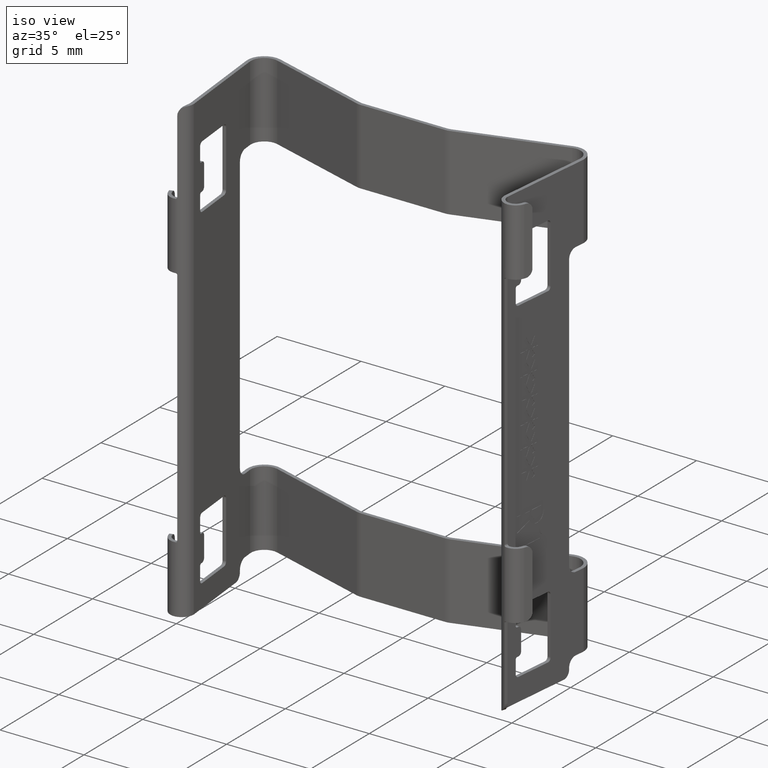
[diagram: clean part render]
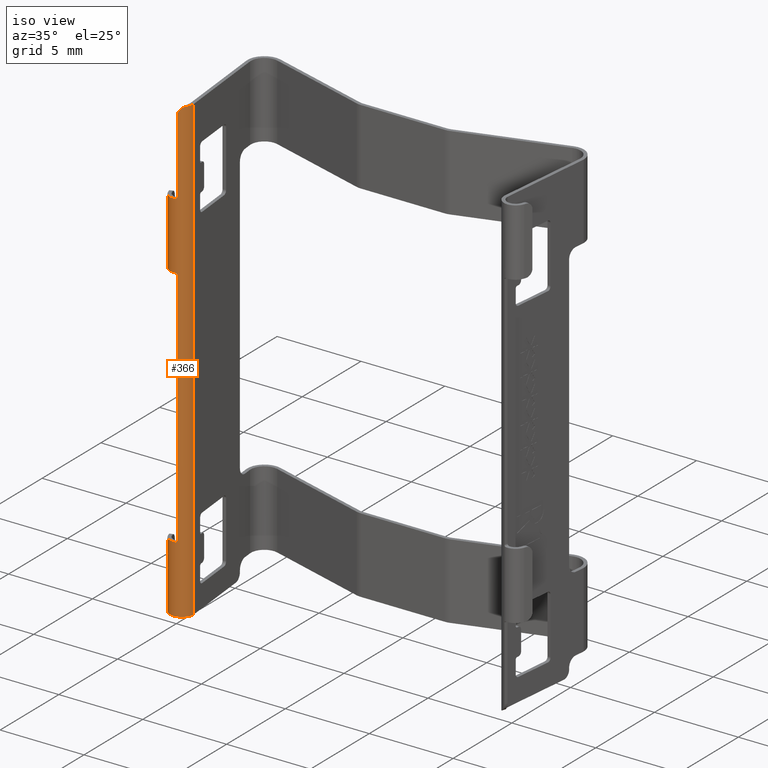
[diagram: same view with one face highlighted and labeled with its STEP entity id]
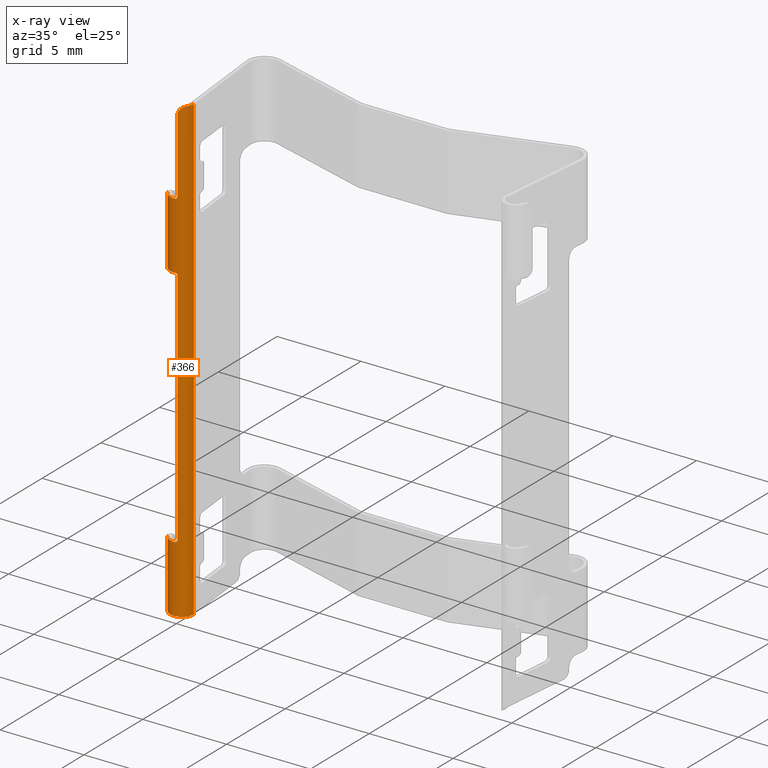
[diagram: x-ray of the same camera — body ghosted, the highlighted face saturated]
A machine part, iso view. The second image highlights one B-rep face of the part: STEP entity #366.
The next image is the same camera in x-ray: the body ghosted, the highlighted face saturated — about 0% of this face is hidden behind the body in this view.
In plain terms, the highlighted cylindrical surface (edge-blend (fillet) strip) has radius 0.7 mm, axis along (0, 0, 1).
Its self-contained STEP definition (entity closure, byte-faithful):
#59 = DIRECTION ( 'NONE',  ( 0.0000000000000000000, 0.0000000000000000000, 1.000000000000000000 ) ) ;
#97 = CIRCLE ( 'NONE', #9156, 0.6999999999999992895 ) ;
#215 = LINE ( 'NONE', #556, #7525 ) ;
#256 = AXIS2_PLACEMENT_3D ( 'NONE', #594, #8254, #7045 ) ;
#366 = ADVANCED_FACE ( 'NONE', ( #10797 ), #5990, .T. ) ;
#433 = CARTESIAN_POINT ( 'NONE',  ( -9.949999999496819569, -4.600000000627099794, -9.000000000000000000 ) ) ;
#479 = VECTOR ( 'NONE', #8460, 1000.000000000000000 ) ;
#556 = CARTESIAN_POINT ( 'NONE',  ( -9.249999999496820280, -4.600000000627099794, -27.50000000000000000 ) ) ;
#565 = B_SPLINE_CURVE_WITH_KNOTS ( 'NONE', 3,
 ( #8419, #10842, #4307, #8497, #6021, #4236, #2660, #5944, #9408, #4368, #7058, #8785, #10346, #3553 ),
 .UNSPECIFIED., .F., .F.,
 ( 4, 2, 2, 2, 2, 2, 4 ),
 ( 0.0000000000000000000, 0.1250000000000070499, 0.1875000000000087153, 0.2500000000000103806, 0.5000000000000069944, 0.7500000000000035527, 1.000000000000000000 ),
 .UNSPECIFIED. ) ;
#580 = CARTESIAN_POINT ( 'NONE',  ( -9.750000000000000000, -5.270820394027060374, -4.899999999999999467 ) ) ;
#594 = CARTESIAN_POINT ( 'NONE',  ( -9.949999999496819569, -4.600000000627099794, -27.50000000000000000 ) ) ;
#651 = B_SPLINE_CURVE_WITH_KNOTS ( 'NONE', 3,
 ( #3832, #1343, #6534, #3073 ),
 .UNSPECIFIED., .F., .F.,
 ( 4, 4 ),
 ( 0.0000000000000000000, 1.000000000000000000 ),
 .UNSPECIFIED. ) ;
#731 = ORIENTED_EDGE ( 'NONE', *, *, #8721, .F. ) ;
#966 = CARTESIAN_POINT ( 'NONE',  ( -9.750000000000000000, -5.270820394027060374, -9.099999999999999645 ) ) ;
#976 = CIRCLE ( 'NONE', #9041, 0.6999999999999992895 ) ;
#1140 = VERTEX_POINT ( 'NONE', #9555 ) ;
#1209 = VERTEX_POINT ( 'NONE', #6400 ) ;
#1221 = CARTESIAN_POINT ( 'NONE',  ( -9.847882821044100510, -5.292511431482119555, -9.000000000000000000 ) ) ;
#1343 = CARTESIAN_POINT ( 'NONE',  ( -9.750244229046906241, -5.270893209060319329, -23.45560730233806623 ) ) ;
#1475 = CARTESIAN_POINT ( 'NONE',  ( -9.750000000000000000, -5.270820394027060374, -9.000000000000000000 ) ) ;
#1514 = LINE ( 'NONE', #1475, #5874 ) ;
#1655 = ORIENTED_EDGE ( 'NONE', *, *, #9482, .F. ) ;
#1805 = CARTESIAN_POINT ( 'NONE',  ( -9.847882821044100510, -5.292511431482119555, -5.000000000000000000 ) ) ;
#1911 = ORIENTED_EDGE ( 'NONE', *, *, #3552, .T. ) ;
#2008 = AXIS2_PLACEMENT_3D ( 'NONE', #2289, #8316, #9108 ) ;
#2114 = DIRECTION ( 'NONE',  ( 1.000000000000000000, 0.0000000000000000000, 0.0000000000000000000 ) ) ;
#2133 = CIRCLE ( 'NONE', #256, 0.6999999999999992895 ) ;
#2289 = CARTESIAN_POINT ( 'NONE',  ( -9.949999999496819569, -4.600000000627099794, 0.0000000000000000000 ) ) ;
#2399 = ORIENTED_EDGE ( 'NONE', *, *, #4464, .T. ) ;
#2414 = VECTOR ( 'NONE', #5992, 1000.000000000000000 ) ;
#2643 = ORIENTED_EDGE ( 'NONE', *, *, #5603, .F. ) ;
#2649 = EDGE_LOOP ( 'NONE', ( #6469, #2399, #2643, #7103, #1911, #8205, #9664, #1655, #6324, #3178, #6241, #8067, #731, #6417 ) ) ;
#2660 = CARTESIAN_POINT ( 'NONE',  ( -9.440940136383446202, -5.080788808256524902, -0.02261233814100881145 ) ) ;
#2766 = CARTESIAN_POINT ( 'NONE',  ( -10.61229890969874035, -4.826627786975890899, -9.000000000000000000 ) ) ;
#2892 = AXIS2_PLACEMENT_3D ( 'NONE', #9129, #3985, #3954 ) ;
#3006 = CARTESIAN_POINT ( 'NONE',  ( -9.949999999496819569, -4.600000000627099794, -5.000000000000000000 ) ) ;
#3073 = CARTESIAN_POINT ( 'NONE',  ( -9.847882821044100510, -5.292511431482119555, -23.50000000000000000 ) ) ;
#3178 = ORIENTED_EDGE ( 'NONE', *, *, #10055, .T. ) ;
#3245 = AXIS2_PLACEMENT_3D ( 'NONE', #4255, #59, #10228 ) ;
#3552 = EDGE_CURVE ( 'NONE', #9564, #5418, #9351, .T. ) ;
#3553 = CARTESIAN_POINT ( 'NONE',  ( -9.750000000000000000, -5.270820394027060374, -0.5000000000000000000 ) ) ;
#3564 = LINE ( 'NONE', #9235, #3830 ) ;
#3728 = DIRECTION ( 'NONE',  ( 0.0000000000000000000, 0.0000000000000000000, 1.000000000000000000 ) ) ;
#3797 = DIRECTION ( 'NONE',  ( 0.0000000000000000000, 0.0000000000000000000, 1.000000000000000000 ) ) ;
#3830 = VECTOR ( 'NONE', #6608, 1000.000000000000000 ) ;
#3832 = CARTESIAN_POINT ( 'NONE',  ( -9.750000000000000000, -5.270820394027060374, -23.40000000000000213 ) ) ;
#3954 = DIRECTION ( 'NONE',  ( 1.000000000000000000, 0.0000000000000000000, 0.0000000000000000000 ) ) ;
#3985 = DIRECTION ( 'NONE',  ( 0.0000000000000000000, 0.0000000000000000000, 1.000000000000000000 ) ) ;
#4100 = CARTESIAN_POINT ( 'NONE',  ( -9.847882821044100510, -5.292511431482119555, -5.000000000000000000 ) ) ;
#4174 = CARTESIAN_POINT ( 'NONE',  ( -9.249999999496809622, -4.600000000627099794, -27.50000000000000000 ) ) ;
#4236 = CARTESIAN_POINT ( 'NONE',  ( -9.431716829154041193, -5.070793041880293117, -0.01919140500811905917 ) ) ;
#4255 = CARTESIAN_POINT ( 'NONE',  ( -9.949999999496819569, -4.600000000627099794, -27.50000000000000000 ) ) ;
#4307 = CARTESIAN_POINT ( 'NONE',  ( -9.368850778025826997, -4.991738710920675004, -0.002326230910075036476 ) ) ;
#4312 = EDGE_CURVE ( 'NONE', #8076, #9281, #97, .T. ) ;
#4368 = CARTESIAN_POINT ( 'NONE',  ( -9.642720156384651631, -5.231199364946858665, -0.1745130632790648506 ) ) ;
#4464 = EDGE_CURVE ( 'NONE', #7799, #11005, #215, .T. ) ;
#4545 = VERTEX_POINT ( 'NONE', #8349 ) ;
#4878 = CARTESIAN_POINT ( 'NONE',  ( -9.750000000000000000, -5.270820394027060374, -4.899999999999999467 ) ) ;
#5258 = CARTESIAN_POINT ( 'NONE',  ( -9.249999999496809622, -4.600000000627099794, 0.0000000000000000000 ) ) ;
#5418 = VERTEX_POINT ( 'NONE', #4878 ) ;
#5531 = DIRECTION ( 'NONE',  ( 0.0000000000000000000, 0.0000000000000000000, -1.000000000000000000 ) ) ;
#5565 = CARTESIAN_POINT ( 'NONE',  ( -9.847882821044100510, -5.292511431482119555, -9.000000000000000000 ) ) ;
#5603 = EDGE_CURVE ( 'NONE', #1209, #11005, #8461, .T. ) ;
#5648 = CARTESIAN_POINT ( 'NONE',  ( -9.792981938536318154, -5.284415791516519967, -9.000000000000001776 ) ) ;
#5696 = CARTESIAN_POINT ( 'NONE',  ( -9.792969082319050500, -5.284413895749064949, -5.000000000000000888 ) ) ;
#5874 = VECTOR ( 'NONE', #5531, 1000.000000000000000 ) ;
#5944 = CARTESIAN_POINT ( 'NONE',  ( -9.501924759183161484, -5.142241392825763313, -0.04912450204046701907 ) ) ;
#5990 = CYLINDRICAL_SURFACE ( 'NONE', #3245, 0.6999999999999992895 ) ;
#5992 = DIRECTION ( 'NONE',  ( 0.0000000000000000000, 0.0000000000000000000, -1.000000000000000000 ) ) ;
#6021 = CARTESIAN_POINT ( 'NONE',  ( -9.410449459090299840, -5.046260851139469317, -0.01221271227789394627 ) ) ;
#6064 = CARTESIAN_POINT ( 'NONE',  ( -9.750000000000000000, -5.270820394027060374, -23.40000000000000213 ) ) ;
#6241 = ORIENTED_EDGE ( 'NONE', *, *, #6625, .T. ) ;
#6324 = ORIENTED_EDGE ( 'NONE', *, *, #4312, .T. ) ;
#6400 = CARTESIAN_POINT ( 'NONE',  ( -9.330871733547111191, -4.926619336095949819, 0.0000000000000000000 ) ) ;
#6417 = ORIENTED_EDGE ( 'NONE', *, *, #10773, .F. ) ;
#6469 = ORIENTED_EDGE ( 'NONE', *, *, #9205, .T. ) ;
#6481 = VERTEX_POINT ( 'NONE', #8544 ) ;
#6489 = VERTEX_POINT ( 'NONE', #966 ) ;
#6534 = CARTESIAN_POINT ( 'NONE',  ( -9.792969082319041618, -5.284413895749063173, -23.50000000000000000 ) ) ;
#6608 = DIRECTION ( 'NONE',  ( 0.0000000000000000000, 0.0000000000000000000, 1.000000000000000000 ) ) ;
#6625 = EDGE_CURVE ( 'NONE', #6489, #6908, #1514, .T. ) ;
#6908 = VERTEX_POINT ( 'NONE', #6064 ) ;
#7045 = DIRECTION ( 'NONE',  ( 1.000000000000000000, 0.0000000000000000000, 0.0000000000000000000 ) ) ;
#7058 = CARTESIAN_POINT ( 'NONE',  ( -9.681647317211504955, -5.247157183122737933, -0.2317352195909671841 ) ) ;
#7103 = ORIENTED_EDGE ( 'NONE', *, *, #7507, .T. ) ;
#7229 = B_SPLINE_CURVE_WITH_KNOTS ( 'NONE', 3,
 ( #5565, #5648, #10793, #9063 ),
 .UNSPECIFIED., .F., .F.,
 ( 4, 4 ),
 ( 0.0000000000000000000, 1.000000000000000000 ),
 .UNSPECIFIED. ) ;
#7330 = CIRCLE ( 'NONE', #2892, 0.6999999999999992895 ) ;
#7395 = VERTEX_POINT ( 'NONE', #10669 ) ;
#7507 = EDGE_CURVE ( 'NONE', #1209, #9564, #565, .T. ) ;
#7525 = VECTOR ( 'NONE', #9831, 1000.000000000000000 ) ;
#7799 = VERTEX_POINT ( 'NONE', #4174 ) ;
#8067 = ORIENTED_EDGE ( 'NONE', *, *, #8133, .T. ) ;
#8076 = VERTEX_POINT ( 'NONE', #2766 ) ;
#8133 = EDGE_CURVE ( 'NONE', #6908, #7395, #651, .T. ) ;
#8205 = ORIENTED_EDGE ( 'NONE', *, *, #8868, .T. ) ;
#8254 = DIRECTION ( 'NONE',  ( 0.0000000000000000000, 0.0000000000000000000, 1.000000000000000000 ) ) ;
#8316 = DIRECTION ( 'NONE',  ( 0.0000000000000000000, 0.0000000000000000000, 1.000000000000000000 ) ) ;
#8339 = EDGE_CURVE ( 'NONE', #4545, #9008, #976, .T. ) ;
#8349 = CARTESIAN_POINT ( 'NONE',  ( -10.61229890969874035, -4.826627786975890899, -5.000000000000000000 ) ) ;
#8419 = CARTESIAN_POINT ( 'NONE',  ( -9.330871733547111191, -4.926619336095949819, 0.0000000000000000000 ) ) ;
#8431 = CARTESIAN_POINT ( 'NONE',  ( -9.750000000000000000, -5.270820394027060374, 9.500000000000000000 ) ) ;
#8460 = DIRECTION ( 'NONE',  ( 0.0000000000000000000, 0.0000000000000000000, 1.000000000000000000 ) ) ;
#8461 = CIRCLE ( 'NONE', #2008, 0.6999999999999992895 ) ;
#8497 = CARTESIAN_POINT ( 'NONE',  ( -9.399900483491796521, -5.033230806527074996, -0.009304923640300144169 ) ) ;
#8544 = CARTESIAN_POINT ( 'NONE',  ( -10.61229890969874035, -4.826627786975890899, -23.50000000000000000 ) ) ;
#8578 = LINE ( 'NONE', #10984, #479 ) ;
#8721 = EDGE_CURVE ( 'NONE', #6481, #7395, #7330, .T. ) ;
#8785 = CARTESIAN_POINT ( 'NONE',  ( -9.735588473750143024, -5.266973222407703936, -0.3599154149462325258 ) ) ;
#8868 = EDGE_CURVE ( 'NONE', #5418, #9008, #9963, .T. ) ;
#9008 = VERTEX_POINT ( 'NONE', #1805 ) ;
#9041 = AXIS2_PLACEMENT_3D ( 'NONE', #3006, #3797, #2114 ) ;
#9063 = CARTESIAN_POINT ( 'NONE',  ( -9.750000000000000000, -5.270820394027060374, -9.099999999999999645 ) ) ;
#9108 = DIRECTION ( 'NONE',  ( 1.000000000000000000, 0.0000000000000000000, 0.0000000000000000000 ) ) ;
#9129 = CARTESIAN_POINT ( 'NONE',  ( -9.949999999496819569, -4.600000000627099794, -23.50000000000000000 ) ) ;
#9156 = AXIS2_PLACEMENT_3D ( 'NONE', #433, #3728, #9655 ) ;
#9200 = CARTESIAN_POINT ( 'NONE',  ( -9.750244229046575839, -5.270893209060219853, -4.955607302337734943 ) ) ;
#9205 = EDGE_CURVE ( 'NONE', #1140, #7799, #2133, .T. ) ;
#9235 = CARTESIAN_POINT ( 'NONE',  ( -10.61229890969874035, -4.826627786975890899, -27.50000000000000000 ) ) ;
#9281 = VERTEX_POINT ( 'NONE', #1221 ) ;
#9351 = LINE ( 'NONE', #8431, #2414 ) ;
#9408 = CARTESIAN_POINT ( 'NONE',  ( -9.550807287049501326, -5.177476162758194000, -0.08160650110613253128 ) ) ;
#9482 = EDGE_CURVE ( 'NONE', #8076, #4545, #3564, .T. ) ;
#9555 = CARTESIAN_POINT ( 'NONE',  ( -10.61229890969874035, -4.826627786975890899, -27.50000000000000000 ) ) ;
#9564 = VERTEX_POINT ( 'NONE', #10031 ) ;
#9655 = DIRECTION ( 'NONE',  ( 1.000000000000000000, 0.0000000000000000000, 0.0000000000000000000 ) ) ;
#9664 = ORIENTED_EDGE ( 'NONE', *, *, #8339, .F. ) ;
#9831 = DIRECTION ( 'NONE',  ( 0.0000000000000000000, 0.0000000000000000000, 1.000000000000000000 ) ) ;
#9963 = B_SPLINE_CURVE_WITH_KNOTS ( 'NONE', 3,
 ( #580, #9200, #5696, #4100 ),
 .UNSPECIFIED., .F., .F.,
 ( 4, 4 ),
 ( 0.0000000000000000000, 1.000000000000000000 ),
 .UNSPECIFIED. ) ;
#10031 = CARTESIAN_POINT ( 'NONE',  ( -9.750000000000000000, -5.270820394027060374, -0.5000000000000000000 ) ) ;
#10055 = EDGE_CURVE ( 'NONE', #9281, #6489, #7229, .T. ) ;
#10228 = DIRECTION ( 'NONE',  ( 1.000000000000000000, 0.0000000000000000000, 0.0000000000000000000 ) ) ;
#10346 = CARTESIAN_POINT ( 'NONE',  ( -9.749670359733510594, -5.270722114288127536, -0.4279736425233659491 ) ) ;
#10669 = CARTESIAN_POINT ( 'NONE',  ( -9.847882821044100510, -5.292511431482119555, -23.50000000000000000 ) ) ;
#10773 = EDGE_CURVE ( 'NONE', #1140, #6481, #8578, .T. ) ;
#10793 = CARTESIAN_POINT ( 'NONE',  ( -9.750242582427009808, -5.270892718133117327, -9.044380880340133544 ) ) ;
#10797 = FACE_OUTER_BOUND ( 'NONE', #2649, .T. ) ;
#10842 = CARTESIAN_POINT ( 'NONE',  ( -9.348934874918573001, -4.960859199387751772, 4.764560328305439407E-19 ) ) ;
#10984 = CARTESIAN_POINT ( 'NONE',  ( -10.61229890969874035, -4.826627786975890899, -27.50000000000000000 ) ) ;
#11005 = VERTEX_POINT ( 'NONE', #5258 ) ;